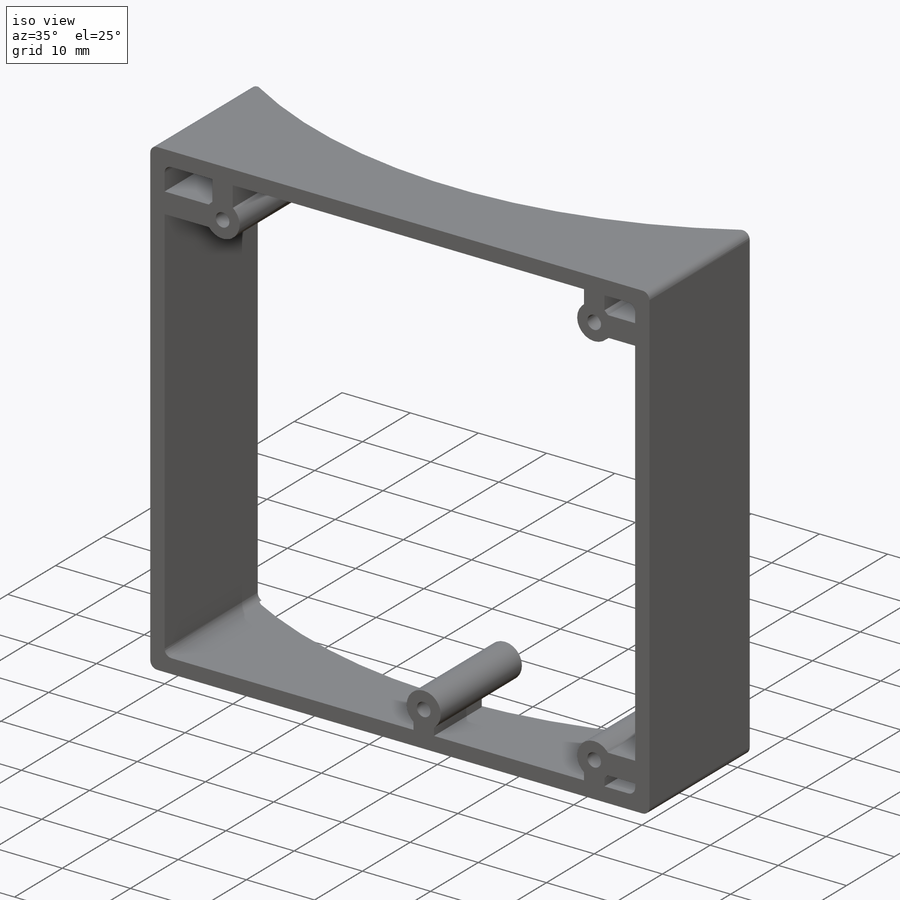
[diagram: iso view]
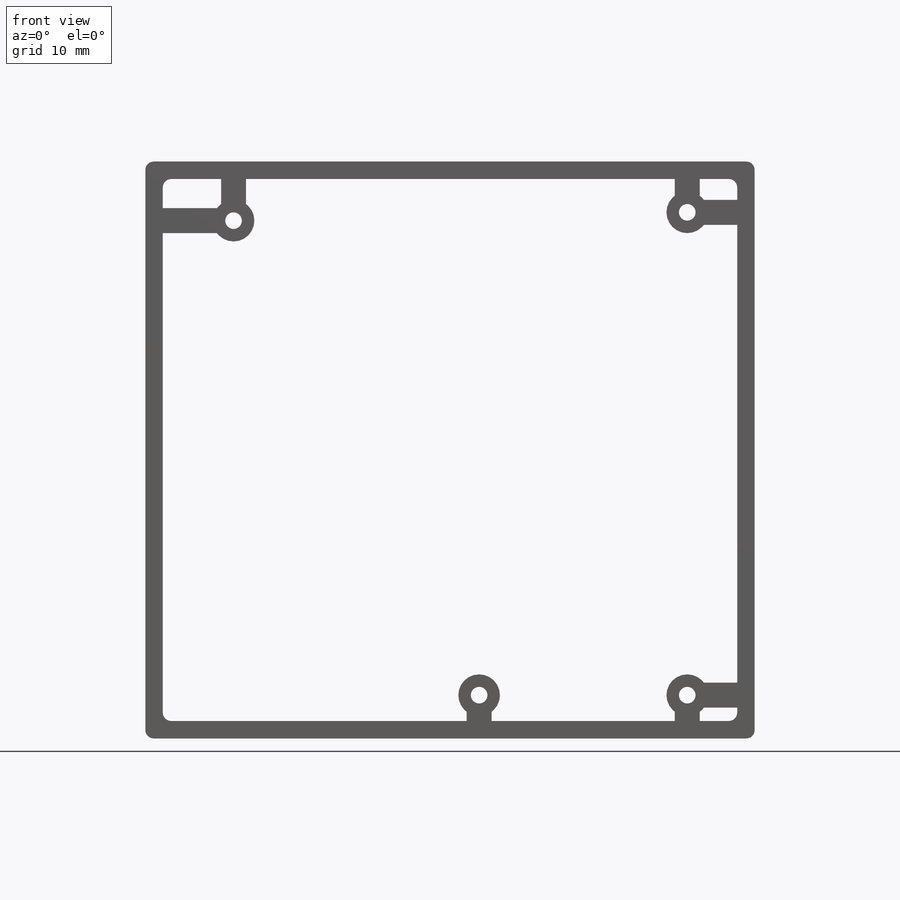
[diagram: front view]
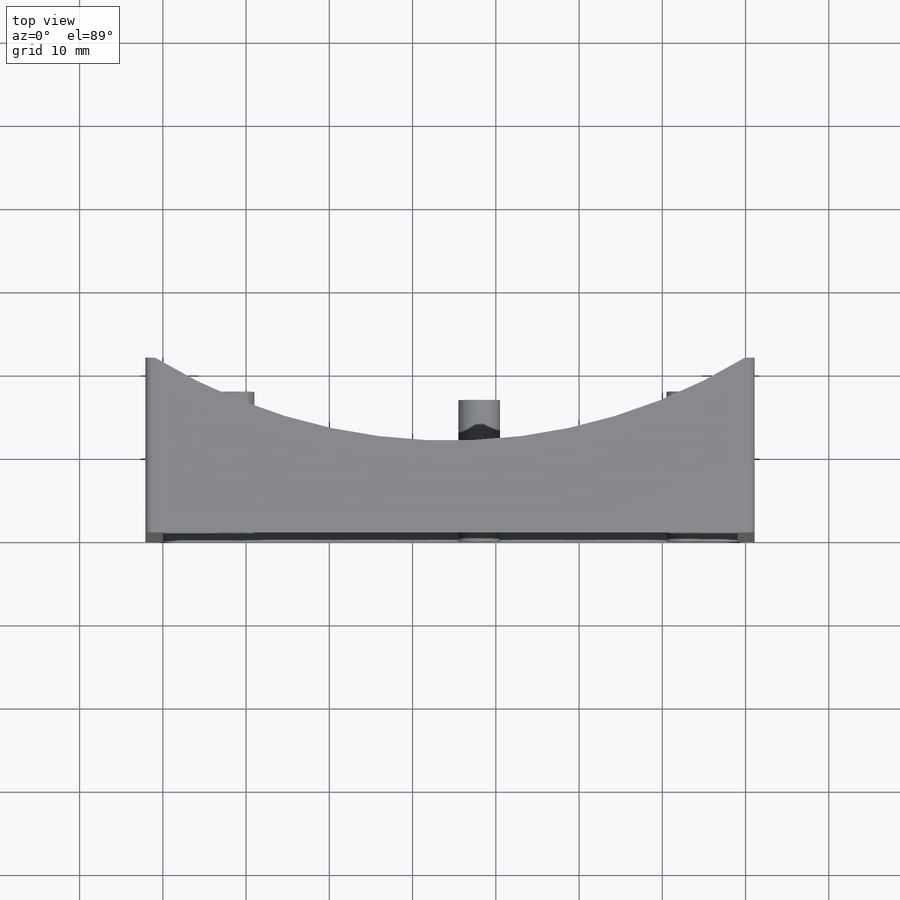
[diagram: top view]
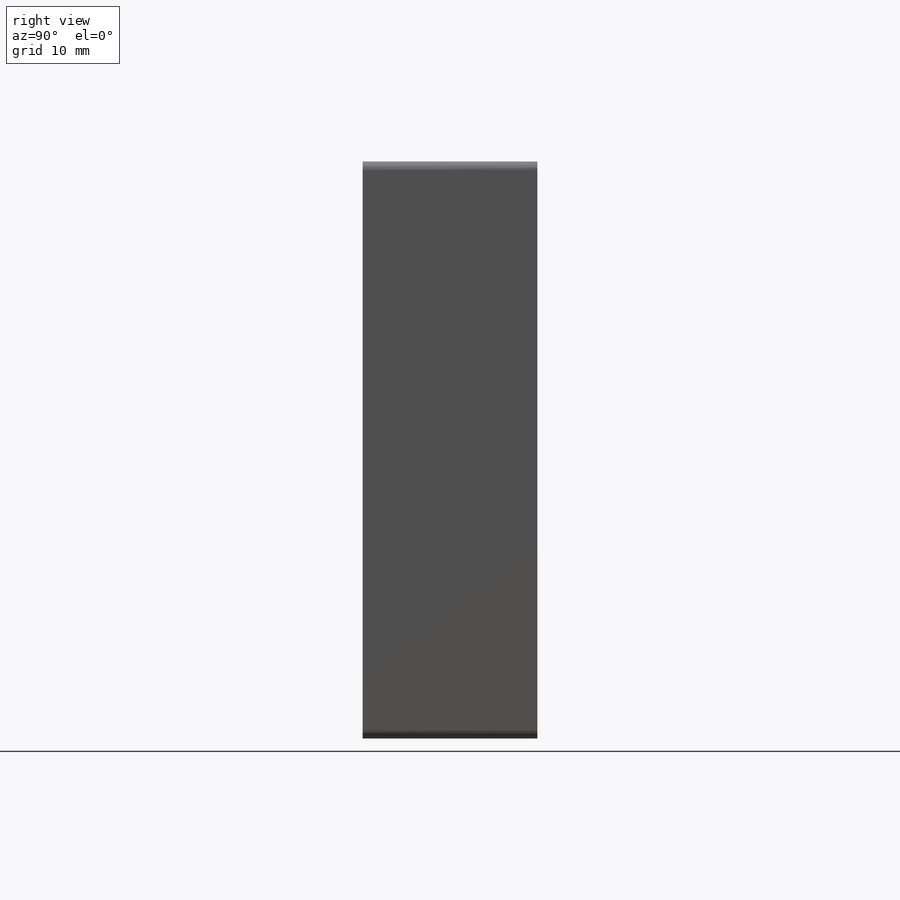
[diagram: right view]
SOLIDWORKS PART (.sldprt)
format: sldprt  version: not decoded by parser v0  size: 438,272 bytes
history: native  units: mm
features: sketch x8, plane x4, extrude x4, cut_extrude x4, fillet x2, material x1 (+10 scaffold rows collapsed)
feature tree (33):
  scaffold x10  (default folders/planes/origin — collapsed)
  material  "Material <nicht angegeben>"
  plane  "Ebene vorne"
  plane  "Ebene oben"
  plane  "Ebene rechts"
  sketch  "Skizze1"  dims[c1.D8=5.0mm c1.D9=3.0mm c1.D10=3.0mm c1.D11=~1.916677mm c1.D12=5.0mm c1.D13=5.0mm c2.D9=1.5mm c2.D16=~0.823405mm c2.D24=5.0mm c2.D1=66.2mm c2.D2=69.0mm c2.D5=58.0mm c2.D6=4.0mm c2.D7=6.0mm c2.D10=54.0mm c2.D11=25.0mm c3.D9=5.0mm c3.D10=54.5mm c3.D14=67.3mm c3.D15=71.2mm c3.D16=4.7mm c3.D17=6.1mm c3.D18=5.1mm c3.D19=5.8mm c3.D20=5.8mm c4.D16=5.8mm c4.D14=66.2mm c4.D5=58.0mm c5.D16=5.3mm c5.D19=1.5mm c5.D20=1.5mm c5.D21=1.5mm c5.D22=1.5mm c5.D23=1.5mm c5.D25=1.5mm c5.D26=69.4mm c5.D3=2.1mm c5.D4=1.1mm]
  extrude  "Aufsatz-Linear austragen1"  Depth=17mm
  extrude  "Aufsatz-Linear austragen2"  [1 undecoded]
  sketch  "Skizze1<3>"  dims[D1=21.0mm]
  extrude  "Aufsatz-Linear austragen3"  [1 undecoded]
  sketch  "Skizze1<4>"  dims[D1=19.5mm]
  plane  "Ebene1"  Offset=0mm
  sketch  "Skizze2"  dims[c1.D1=73.2mm c1.D2=58.0mm c2.D1=1.0mm]
  cut_extrude  "Schnitt-Linear austragen1"  Depth=2.1mm
  cut_extrude  "Schnitt-Linear austragen4"  [1 undecoded]
  sketch  "Skizze2<6>"  dims[D1=1.2mm D19=1.0mm]
  cut_extrude  "Schnitt-Linear austragen6"  [1 undecoded]
  sketch  "Skizze2<14>"  dims[D1=1.4mm D19=66.9mm]
  extrude  "Aufsatz-Linear austragen4"  [1 undecoded]
  sketch  "Skizze1<5>"  dims[D1=10.0mm]
  cut_extrude  "Schnitt-Linear austragen7"  [1 undecoded]
  sketch  "Skizze2<15>"  dims[D1=10.0mm D19=66.9mm]
  fillet  "Verrundung1"  Radius=1mm
  fillet  "Verrundung2"  Radius=1mm
decode coverage: 12 of 18 modeling features carry decoded parameters
note: ~ marks probable driven/reference dimensions
note: 6 parameter values undecoded
summary: no parameter record found for 6 features
note: suppression state not decoded; provenance and decode notes live in map.json
